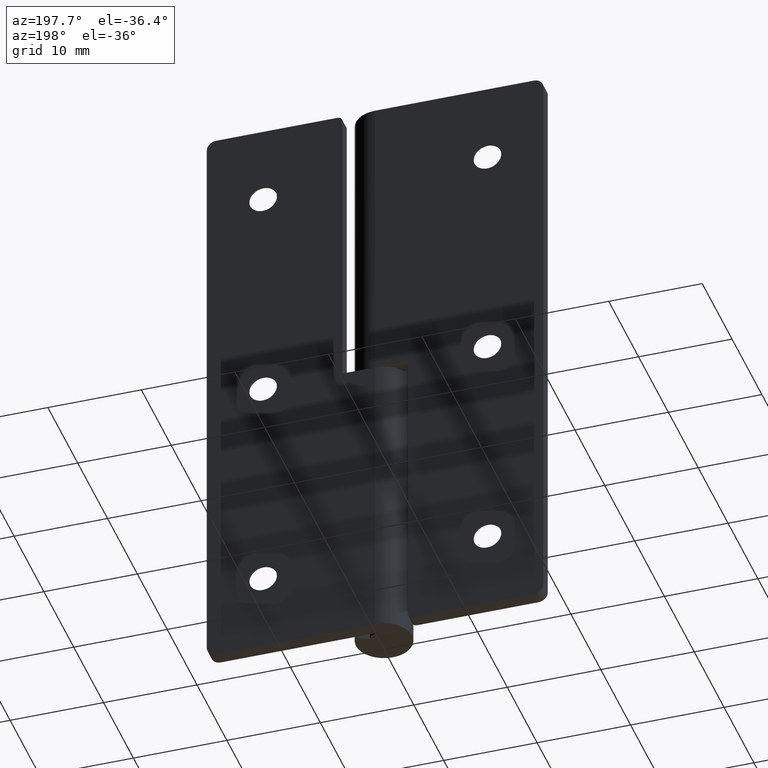
[diagram: clean part render]
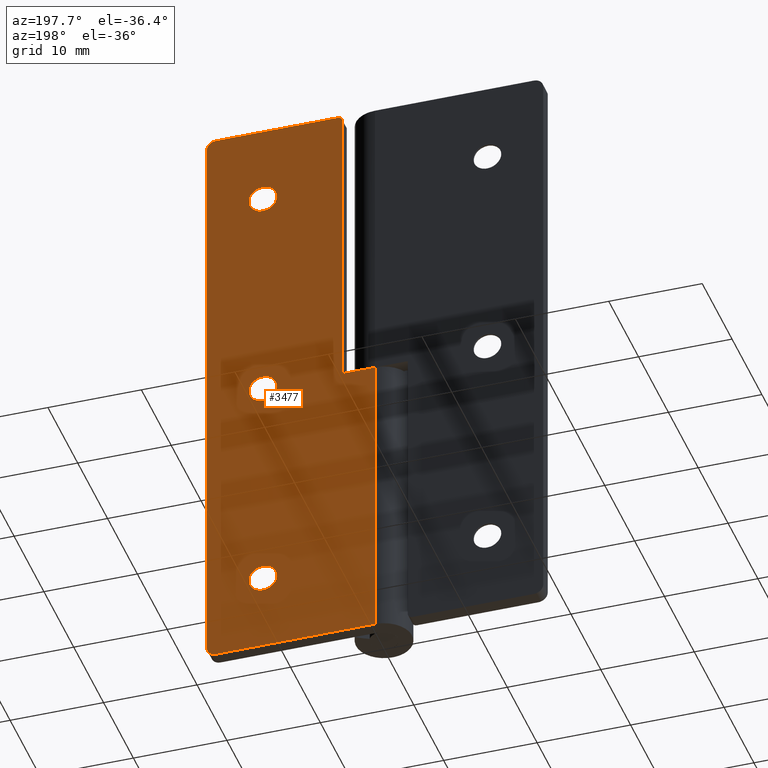
[diagram: same view with one face highlighted and labeled with its STEP entity id]
A machine part, auxiliary view. The second image highlights one B-rep face of the part: STEP entity #3477.
In plain terms, the highlighted face is a freeform B-spline surface patch.
Its self-contained STEP definition (entity closure, byte-faithful):
#2173=CARTESIAN_POINT('',(13.489514289519180,3.0,56.677051352206547));
#2174=VERTEX_POINT('',#2173);
#2180=CARTESIAN_POINT('',(12.0,3.0,55.0));
#2181=VERTEX_POINT('',#2180);
#2182=CARTESIAN_POINT('',(13.489514289519184,2.999999999999999,56.677051352206547));
#2183=CARTESIAN_POINT('',(13.499999999999996,3.000000000000000,56.588836179701616));
#2184=CARTESIAN_POINT('',(13.500000000000000,3.0,56.500000000000000));
#2185=CARTESIAN_POINT('',(13.500000000000000,3.0,55.000000000000007));
#2186=CARTESIAN_POINT('',(12.0,3.0,55.0));
#2194=(BOUNDED_CURVE()B_SPLINE_CURVE(2,(#2182,#2183,#2184,#2185,#2186),.UNSPECIFIED.,.F.,.U.)B_SPLINE_CURVE_WITH_KNOTS((3,2,3),(0.229562473465401,0.250000000000000,0.500000000000000),.UNSPECIFIED.)CURVE()GEOMETRIC_REPRESENTATION_ITEM()RATIONAL_B_SPLINE_CURVE((0.956026754089407,0.976055948274784,1.0,0.707106781186548,1.0))REPRESENTATION_ITEM(''));
#2195=EDGE_CURVE('',#2174,#2181,#2194,.T.);
#2197=CARTESIAN_POINT('',(10.502797802390299,3.0,56.408427190320083));
#2198=VERTEX_POINT('',#2197);
#2199=CARTESIAN_POINT('',(12.0,3.0,55.0));
#2200=CARTESIAN_POINT('',(10.588940900354590,3.0,55.0));
#2201=CARTESIAN_POINT('',(10.502797802390301,3.0,56.408427190320083));
#2209=(BOUNDED_CURVE()B_SPLINE_CURVE(2,(#2199,#2200,#2201),.UNSPECIFIED.,.F.,.U.)B_SPLINE_CURVE_WITH_KNOTS((3,3),(0.500000000000000,0.739332962154928),.UNSPECIFIED.)CURVE()GEOMETRIC_REPRESENTATION_ITEM()RATIONAL_B_SPLINE_CURVE((1.0,0.719603993385140,0.976072041486657))REPRESENTATION_ITEM(''));
#2210=EDGE_CURVE('',#2181,#2198,#2209,.T.);
#2244=CARTESIAN_POINT('',(12.0,3.0,58.0));
#2245=VERTEX_POINT('',#2244);
#2246=CARTESIAN_POINT('',(10.502797802390294,3.000000000000000,56.408427190320090));
#2247=CARTESIAN_POINT('',(10.500000000000002,3.000000000000000,56.454170854673421));
#2248=CARTESIAN_POINT('',(10.500000000000000,3.0,56.500000000000000));
#2249=CARTESIAN_POINT('',(10.500000000000002,3.0,58.0));
#2250=CARTESIAN_POINT('',(12.0,3.0,58.0));
#2258=(BOUNDED_CURVE()B_SPLINE_CURVE(2,(#2246,#2247,#2248,#2249,#2250),.UNSPECIFIED.,.F.,.U.)B_SPLINE_CURVE_WITH_KNOTS((3,2,3),(0.739332962154928,0.750000000000000,1.0),.UNSPECIFIED.)CURVE()GEOMETRIC_REPRESENTATION_ITEM()RATIONAL_B_SPLINE_CURVE((0.976072041486657,0.987502787801407,1.0,0.707106781186548,1.0))REPRESENTATION_ITEM(''));
#2259=EDGE_CURVE('',#2198,#2245,#2258,.T.);
#2261=CARTESIAN_POINT('',(12.0,3.0,58.0));
#2262=CARTESIAN_POINT('',(13.332261788528195,3.0,58.0));
#2263=CARTESIAN_POINT('',(13.489514289519184,2.999999999999999,56.677051352206547));
#2271=(BOUNDED_CURVE()B_SPLINE_CURVE(2,(#2261,#2262,#2263),.UNSPECIFIED.,.F.,.U.)B_SPLINE_CURVE_WITH_KNOTS((3,3),(0.0,0.229562473465401),.UNSPECIFIED.)CURVE()GEOMETRIC_REPRESENTATION_ITEM()RATIONAL_B_SPLINE_CURVE((1.0,0.731050832911764,0.956026754089407))REPRESENTATION_ITEM(''));
#2272=EDGE_CURVE('',#2245,#2174,#2271,.T.);
#2517=CARTESIAN_POINT('',(13.489514289519180,3.0,32.677051352206547));
#2518=VERTEX_POINT('',#2517);
#2524=CARTESIAN_POINT('',(12.0,3.0,31.0));
#2525=VERTEX_POINT('',#2524);
#2526=CARTESIAN_POINT('',(13.489514289519182,3.000000000000000,32.677051352206554));
#2527=CARTESIAN_POINT('',(13.500000000000002,3.000000000000000,32.588836179701616));
#2528=CARTESIAN_POINT('',(13.500000000000000,3.0,32.500000000000000));
#2529=CARTESIAN_POINT('',(13.500000000000000,3.0,31.000000000000007));
#2530=CARTESIAN_POINT('',(12.0,3.0,31.0));
#2538=(BOUNDED_CURVE()B_SPLINE_CURVE(2,(#2526,#2527,#2528,#2529,#2530),.UNSPECIFIED.,.F.,.U.)B_SPLINE_CURVE_WITH_KNOTS((3,2,3),(0.229562473465401,0.250000000000000,0.500000000000000),.UNSPECIFIED.)CURVE()GEOMETRIC_REPRESENTATION_ITEM()RATIONAL_B_SPLINE_CURVE((0.956026754089407,0.976055948274784,1.0,0.707106781186548,1.0))REPRESENTATION_ITEM(''));
#2539=EDGE_CURVE('',#2518,#2525,#2538,.T.);
#2541=CARTESIAN_POINT('',(10.502797802390299,3.0,32.408427190320097));
#2542=VERTEX_POINT('',#2541);
#2543=CARTESIAN_POINT('',(12.0,3.0,31.0));
#2544=CARTESIAN_POINT('',(10.588940900354572,3.0,31.000000000000004));
#2545=CARTESIAN_POINT('',(10.502797802390301,2.999999999999999,32.408427190320097));
#2553=(BOUNDED_CURVE()B_SPLINE_CURVE(2,(#2543,#2544,#2545),.UNSPECIFIED.,.F.,.U.)B_SPLINE_CURVE_WITH_KNOTS((3,3),(0.500000000000000,0.739332962154930),.UNSPECIFIED.)CURVE()GEOMETRIC_REPRESENTATION_ITEM()RATIONAL_B_SPLINE_CURVE((1.0,0.719603993385137,0.976072041486662))REPRESENTATION_ITEM(''));
#2554=EDGE_CURVE('',#2525,#2542,#2553,.T.);
#2588=CARTESIAN_POINT('',(12.0,3.0,34.0));
#2589=VERTEX_POINT('',#2588);
#2590=CARTESIAN_POINT('',(10.502797802390296,3.000000000000000,32.408427190320090));
#2591=CARTESIAN_POINT('',(10.500000000000007,3.000000000000000,32.454170854673436));
#2592=CARTESIAN_POINT('',(10.500000000000000,3.0,32.500000000000000));
#2593=CARTESIAN_POINT('',(10.500000000000002,3.0,34.000000000000007));
#2594=CARTESIAN_POINT('',(12.0,3.0,34.0));
#2602=(BOUNDED_CURVE()B_SPLINE_CURVE(2,(#2590,#2591,#2592,#2593,#2594),.UNSPECIFIED.,.F.,.U.)B_SPLINE_CURVE_WITH_KNOTS((3,2,3),(0.739332962154929,0.750000000000000,1.0),.UNSPECIFIED.)CURVE()GEOMETRIC_REPRESENTATION_ITEM()RATIONAL_B_SPLINE_CURVE((0.976072041486660,0.987502787801409,1.0,0.707106781186548,1.0))REPRESENTATION_ITEM(''));
#2603=EDGE_CURVE('',#2542,#2589,#2602,.T.);
#2605=CARTESIAN_POINT('',(12.0,3.0,34.0));
#2606=CARTESIAN_POINT('',(13.332261788528191,3.000000000000001,34.0));
#2607=CARTESIAN_POINT('',(13.489514289519184,3.0,32.677051352206547));
#2615=(BOUNDED_CURVE()B_SPLINE_CURVE(2,(#2605,#2606,#2607),.UNSPECIFIED.,.F.,.U.)B_SPLINE_CURVE_WITH_KNOTS((3,3),(0.0,0.229562473465401),.UNSPECIFIED.)CURVE()GEOMETRIC_REPRESENTATION_ITEM()RATIONAL_B_SPLINE_CURVE((1.0,0.731050832911764,0.956026754089406))REPRESENTATION_ITEM(''));
#2616=EDGE_CURVE('',#2589,#2518,#2615,.T.);
#2861=CARTESIAN_POINT('',(13.489514289519180,3.0,8.677051352206449));
#2862=VERTEX_POINT('',#2861);
#2868=CARTESIAN_POINT('',(12.0,3.0,6.999999999999901));
#2869=VERTEX_POINT('',#2868);
#2870=CARTESIAN_POINT('',(13.489514289519184,3.0,8.677051352206449));
#2871=CARTESIAN_POINT('',(13.500000000000004,3.000000000000000,8.588836179701518));
#2872=CARTESIAN_POINT('',(13.500000000000000,3.0,8.499999999999901));
#2873=CARTESIAN_POINT('',(13.500000000000000,3.0,6.999999999999899));
#2874=CARTESIAN_POINT('',(12.0,3.0,6.999999999999901));
#2882=(BOUNDED_CURVE()B_SPLINE_CURVE(2,(#2870,#2871,#2872,#2873,#2874),.UNSPECIFIED.,.F.,.U.)B_SPLINE_CURVE_WITH_KNOTS((3,2,3),(0.229562473465401,0.250000000000000,0.500000000000000),.UNSPECIFIED.)CURVE()GEOMETRIC_REPRESENTATION_ITEM()RATIONAL_B_SPLINE_CURVE((0.956026754089406,0.976055948274783,1.0,0.707106781186548,1.0))REPRESENTATION_ITEM(''));
#2883=EDGE_CURVE('',#2862,#2869,#2882,.T.);
#2885=CARTESIAN_POINT('',(10.502797802390299,3.0,8.408427190319991));
#2886=VERTEX_POINT('',#2885);
#2887=CARTESIAN_POINT('',(12.0,3.0,6.999999999999901));
#2888=CARTESIAN_POINT('',(10.588940900354572,3.0,6.999999999999900));
#2889=CARTESIAN_POINT('',(10.502797802390301,2.999999999999999,8.408427190319991));
#2897=(BOUNDED_CURVE()B_SPLINE_CURVE(2,(#2887,#2888,#2889),.UNSPECIFIED.,.F.,.U.)B_SPLINE_CURVE_WITH_KNOTS((3,3),(0.500000000000000,0.739332962154930),.UNSPECIFIED.)CURVE()GEOMETRIC_REPRESENTATION_ITEM()RATIONAL_B_SPLINE_CURVE((1.0,0.719603993385137,0.976072041486662))REPRESENTATION_ITEM(''));
#2898=EDGE_CURVE('',#2869,#2886,#2897,.T.);
#2932=CARTESIAN_POINT('',(12.0,3.0,9.999999999999899));
#2933=VERTEX_POINT('',#2932);
#2934=CARTESIAN_POINT('',(10.502797802390296,3.000000000000000,8.408427190319991));
#2935=CARTESIAN_POINT('',(10.500000000000007,3.000000000000000,8.454170854673334));
#2936=CARTESIAN_POINT('',(10.500000000000000,3.0,8.499999999999901));
#2937=CARTESIAN_POINT('',(10.500000000000002,3.0,9.999999999999901));
#2938=CARTESIAN_POINT('',(12.0,3.0,9.999999999999899));
#2946=(BOUNDED_CURVE()B_SPLINE_CURVE(2,(#2934,#2935,#2936,#2937,#2938),.UNSPECIFIED.,.F.,.U.)B_SPLINE_CURVE_WITH_KNOTS((3,2,3),(0.739332962154929,0.750000000000000,1.0),.UNSPECIFIED.)CURVE()GEOMETRIC_REPRESENTATION_ITEM()RATIONAL_B_SPLINE_CURVE((0.976072041486660,0.987502787801409,1.0,0.707106781186548,1.0))REPRESENTATION_ITEM(''));
#2947=EDGE_CURVE('',#2886,#2933,#2946,.T.);
#2949=CARTESIAN_POINT('',(12.0,3.0,9.999999999999899));
#2950=CARTESIAN_POINT('',(13.332261788528189,3.000000000000000,9.999999999999899));
#2951=CARTESIAN_POINT('',(13.489514289519185,3.000000000000000,8.677051352206449));
#2959=(BOUNDED_CURVE()B_SPLINE_CURVE(2,(#2949,#2950,#2951),.UNSPECIFIED.,.F.,.U.)B_SPLINE_CURVE_WITH_KNOTS((3,3),(0.0,0.229562473465401),.UNSPECIFIED.)CURVE()GEOMETRIC_REPRESENTATION_ITEM()RATIONAL_B_SPLINE_CURVE((1.0,0.731050832911764,0.956026754089406))REPRESENTATION_ITEM(''));
#2960=EDGE_CURVE('',#2933,#2862,#2959,.T.);
#2997=CARTESIAN_POINT('',(3.999999999999901,3.0,65.0));
#2998=VERTEX_POINT('',#2997);
#3004=CARTESIAN_POINT('',(3.499999999999901,3.0,64.500000000000000));
#3005=VERTEX_POINT('',#3004);
#3006=CARTESIAN_POINT('',(3.999999999999901,3.0,65.0));
#3007=CARTESIAN_POINT('',(3.499999999999901,3.0,65.0));
#3008=CARTESIAN_POINT('',(3.499999999999901,3.0,64.500000000000000));
#3016=(BOUNDED_CURVE()B_SPLINE_CURVE(2,(#3006,#3007,#3008),.UNSPECIFIED.,.F.,.U.)CURVE()GEOMETRIC_REPRESENTATION_ITEM()QUASI_UNIFORM_CURVE()RATIONAL_B_SPLINE_CURVE((1.0,0.707106781186548,1.0))REPRESENTATION_ITEM(''));
#3017=EDGE_CURVE('',#2998,#3005,#3016,.T.);
#3033=CARTESIAN_POINT('',(3.499999999999901,3.0,32.500000000000000));
#3034=VERTEX_POINT('',#3033);
#3035=CARTESIAN_POINT('',(3.499999999999901,3.0,64.500000000000000));
#3036=CARTESIAN_POINT('',(3.499999999999901,3.0,32.500000000000000));
#3037=QUASI_UNIFORM_CURVE('',1,(#3035,#3036),.UNSPECIFIED.,.F.,.U.);
#3038=EDGE_CURVE('',#3005,#3034,#3037,.T.);
#3061=CARTESIAN_POINT('',(0.0,3.0,32.500000000000000));
#3062=VERTEX_POINT('',#3061);
#3063=CARTESIAN_POINT('',(3.499999999999901,3.0,32.500000000000000));
#3064=CARTESIAN_POINT('',(0.0,3.0,32.500000000000000));
#3065=QUASI_UNIFORM_CURVE('',1,(#3063,#3064),.UNSPECIFIED.,.F.,.U.);
#3066=EDGE_CURVE('',#3034,#3062,#3065,.T.);
#3156=CARTESIAN_POINT('',(18.0,3.0,64.0));
#3157=VERTEX_POINT('',#3156);
#3163=CARTESIAN_POINT('',(17.0,3.0,65.0));
#3164=VERTEX_POINT('',#3163);
#3165=CARTESIAN_POINT('',(18.0,3.0,64.0));
#3166=CARTESIAN_POINT('',(18.000000000000007,3.0,65.0));
#3167=CARTESIAN_POINT('',(17.0,3.0,65.0));
#3175=(BOUNDED_CURVE()B_SPLINE_CURVE(2,(#3165,#3166,#3167),.UNSPECIFIED.,.F.,.U.)CURVE()GEOMETRIC_REPRESENTATION_ITEM()QUASI_UNIFORM_CURVE()RATIONAL_B_SPLINE_CURVE((1.0,0.707106781186548,1.0))REPRESENTATION_ITEM(''));
#3176=EDGE_CURVE('',#3157,#3164,#3175,.T.);
#3217=CARTESIAN_POINT('',(17.0,3.0,0.0));
#3218=VERTEX_POINT('',#3217);
#3224=CARTESIAN_POINT('',(18.0,3.0,1.0));
#3225=VERTEX_POINT('',#3224);
#3226=CARTESIAN_POINT('',(17.0,3.0,0.0));
#3227=CARTESIAN_POINT('',(18.000000000000007,3.0,0.0));
#3228=CARTESIAN_POINT('',(18.0,3.0,1.0));
#3236=(BOUNDED_CURVE()B_SPLINE_CURVE(2,(#3226,#3227,#3228),.UNSPECIFIED.,.F.,.U.)CURVE()GEOMETRIC_REPRESENTATION_ITEM()QUASI_UNIFORM_CURVE()RATIONAL_B_SPLINE_CURVE((1.0,0.707106781186548,1.0))REPRESENTATION_ITEM(''));
#3237=EDGE_CURVE('',#3218,#3225,#3236,.T.);
#3288=CARTESIAN_POINT('',(-0.000000157079587,3.0,0.0));
#3289=VERTEX_POINT('',#3288);
#3309=CARTESIAN_POINT('',(17.0,3.0,0.0));
#3310=CARTESIAN_POINT('',(-0.000000157079587,3.0,0.0));
#3311=QUASI_UNIFORM_CURVE('',1,(#3309,#3310),.UNSPECIFIED.,.F.,.U.);
#3312=EDGE_CURVE('',#3218,#3289,#3311,.T.);
#3322=CARTESIAN_POINT('',(18.0,3.0,1.0));
#3323=CARTESIAN_POINT('',(18.0,3.0,64.0));
#3324=QUASI_UNIFORM_CURVE('',1,(#3322,#3323),.UNSPECIFIED.,.F.,.U.);
#3325=EDGE_CURVE('',#3225,#3157,#3324,.T.);
#3380=CARTESIAN_POINT('',(-0.000000157079587,3.0,0.0));
#3381=CARTESIAN_POINT('',(0.0,3.0,32.500000000000000));
#3382=QUASI_UNIFORM_CURVE('',1,(#3380,#3381),.UNSPECIFIED.,.F.,.U.);
#3383=EDGE_CURVE('',#3289,#3062,#3382,.T.);
#3435=CARTESIAN_POINT('',(17.0,3.0,65.0));
#3436=CARTESIAN_POINT('',(3.999999999999901,3.0,65.0));
#3437=QUASI_UNIFORM_CURVE('',1,(#3435,#3436),.UNSPECIFIED.,.F.,.U.);
#3438=EDGE_CURVE('',#3164,#2998,#3437,.T.);
#3443=CARTESIAN_POINT('',(-0.899100130038219,3.0,-3.246749874017389));
#3444=CARTESIAN_POINT('',(-0.899100130038219,3.0,68.246751617453242));
#3445=CARTESIAN_POINT('',(18.899100455756258,3.0,-3.246749874017389));
#3446=CARTESIAN_POINT('',(18.899100455756258,3.0,68.246751617453242));
#3447=B_SPLINE_SURFACE_WITH_KNOTS('',1,1,((#3443,#3445),(#3444,#3446)),.UNSPECIFIED.,.F.,.F.,.U.,(2,2),(2,2),(0.0,71.493501491470624),(0.0,19.798200585794479),.UNSPECIFIED.);
#3448=ORIENTED_EDGE('',*,*,#3038,.F.);
#3449=ORIENTED_EDGE('',*,*,#3017,.F.);
#3450=ORIENTED_EDGE('',*,*,#3438,.F.);
#3451=ORIENTED_EDGE('',*,*,#3176,.F.);
#3452=ORIENTED_EDGE('',*,*,#3325,.F.);
#3453=ORIENTED_EDGE('',*,*,#3237,.F.);
#3454=ORIENTED_EDGE('',*,*,#3312,.T.);
#3455=ORIENTED_EDGE('',*,*,#3383,.T.);
#3456=ORIENTED_EDGE('',*,*,#3066,.F.);
#3457=EDGE_LOOP('',(#3448,#3449,#3450,#3451,#3452,#3453,#3454,#3455,#3456));
#3458=FACE_OUTER_BOUND('',#3457,.T.);
#3459=ORIENTED_EDGE('',*,*,#2898,.F.);
#3460=ORIENTED_EDGE('',*,*,#2883,.F.);
#3461=ORIENTED_EDGE('',*,*,#2960,.F.);
#3462=ORIENTED_EDGE('',*,*,#2947,.F.);
#3463=EDGE_LOOP('',(#3459,#3460,#3461,#3462));
#3464=FACE_BOUND('',#3463,.T.);
#3465=ORIENTED_EDGE('',*,*,#2554,.F.);
#3466=ORIENTED_EDGE('',*,*,#2539,.F.);
#3467=ORIENTED_EDGE('',*,*,#2616,.F.);
#3468=ORIENTED_EDGE('',*,*,#2603,.F.);
#3469=EDGE_LOOP('',(#3465,#3466,#3467,#3468));
#3470=FACE_BOUND('',#3469,.T.);
#3471=ORIENTED_EDGE('',*,*,#2210,.F.);
#3472=ORIENTED_EDGE('',*,*,#2195,.F.);
#3473=ORIENTED_EDGE('',*,*,#2272,.F.);
#3474=ORIENTED_EDGE('',*,*,#2259,.F.);
#3475=EDGE_LOOP('',(#3471,#3472,#3473,#3474));
#3476=FACE_BOUND('',#3475,.T.);
#3477=ADVANCED_FACE('',(#3458,#3464,#3470,#3476),#3447,.T.);